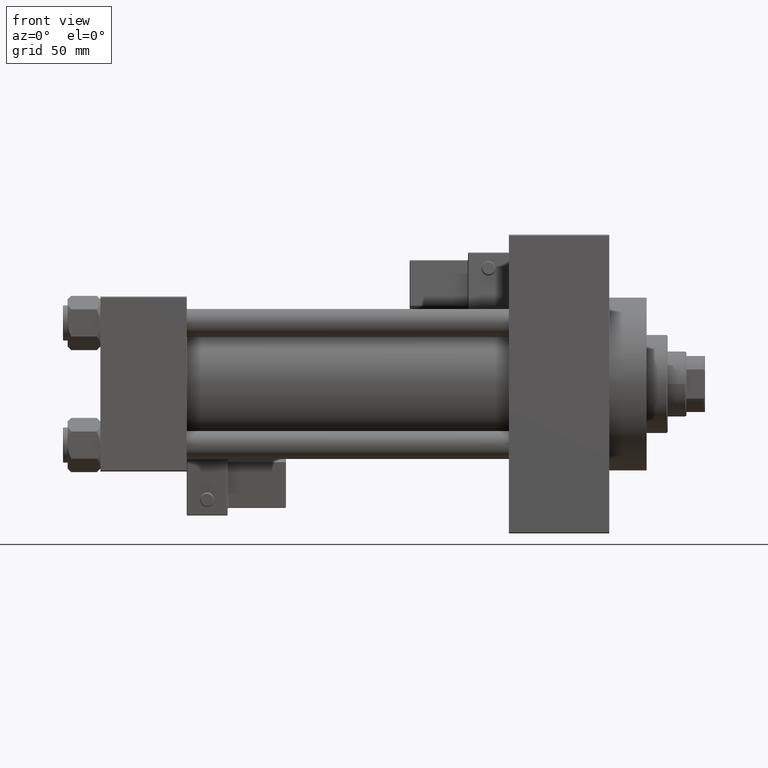
[diagram: clean part render]
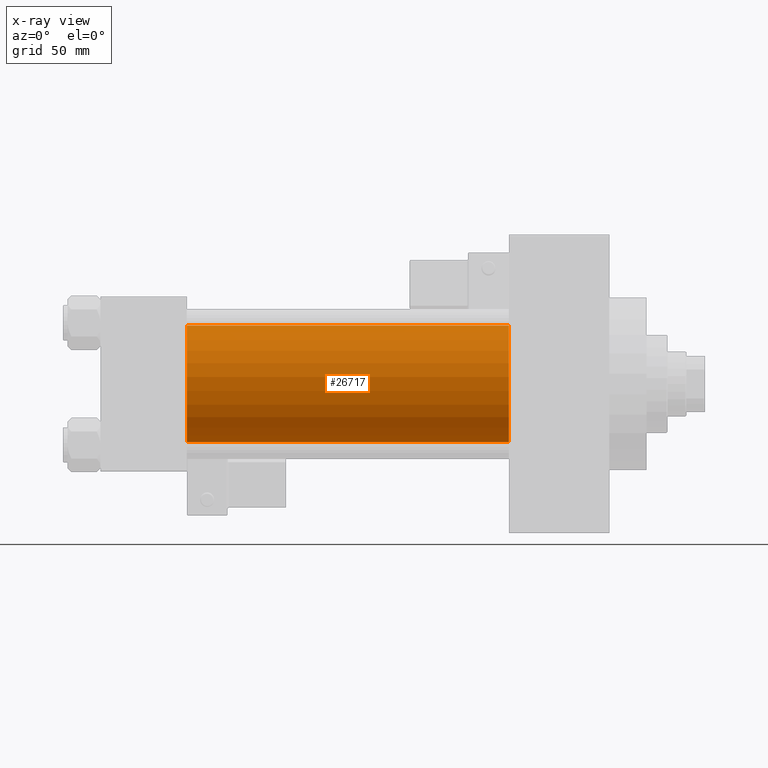
[diagram: x-ray — body ghosted, one internal face saturated and labeled with its STEP entity id]
A machine part, front view, then the same camera in x-ray: the body is ghosted and one INTERNAL B-rep face — a face not visible from any outside direction — is saturated and labeled: STEP entity #26717.
In plain terms, the highlighted cylindrical surface (partial cylindrical patch) has radius 25 mm, axis along (-1, -0, -0).
Its self-contained STEP definition (entity closure, byte-faithful):
#1724 = DIRECTION ( 'NONE',  ( 0.000000000000000000, 0.000000000000000000, -1.000000000000000000 ) ) ;
#5190 = EDGE_CURVE ( 'NONE', #12393, #48206, #26837, .T. ) ;
#5609 = ORIENTED_EDGE ( 'NONE', *, *, #5190, .F. ) ;
#5840 = DIRECTION ( 'NONE',  ( 1.000000000000000000, 0.000000000000000000, 0.000000000000000000 ) ) ;
#7569 = DIRECTION ( 'NONE',  ( -1.000000000000000000, -0.000000000000000000, -0.000000000000000000 ) ) ;
#9737 = CARTESIAN_POINT ( 'NONE',  ( 37.00000000000000000, -2.602085213965210642E-15, 25.00000000000000000 ) ) ;
#10143 = AXIS2_PLACEMENT_3D ( 'NONE', #10459, #40947, #1724 ) ;
#10459 = CARTESIAN_POINT ( 'NONE',  ( 175.0000000000000284, -2.602085213965210642E-15, 0.000000000000000000 ) ) ;
#12393 = VERTEX_POINT ( 'NONE', #28611 ) ;
#13316 = CIRCLE ( 'NONE', #10143, 25.00000000000000000 ) ;
#17231 = ORIENTED_EDGE ( 'NONE', *, *, #46264, .T. ) ;
#19589 = VERTEX_POINT ( 'NONE', #24267 ) ;
#20333 = DIRECTION ( 'NONE',  ( -1.000000000000000000, -0.000000000000000000, -0.000000000000000000 ) ) ;
#23365 = EDGE_CURVE ( 'NONE', #19589, #46128, #33511, .T. ) ;
#24267 = CARTESIAN_POINT ( 'NONE',  ( 175.0000000000000284, 4.595317839031724996E-16, -25.00000000000000000 ) ) ;
#25319 = FACE_OUTER_BOUND ( 'NONE', #44546, .T. ) ;
#26276 = CARTESIAN_POINT ( 'NONE',  ( 37.00000000000000000, 4.595317839031724996E-16, -25.00000000000000000 ) ) ;
#26717 = ADVANCED_FACE ( 'NONE', ( #25319 ), #28096, .F. ) ;
#26837 = LINE ( 'NONE', #41568, #34090 ) ;
#28096 = CYLINDRICAL_SURFACE ( 'NONE', #34690, 25.00000000000000000 ) ;
#28434 = CIRCLE ( 'NONE', #47548, 25.00000000000000000 ) ;
#28611 = CARTESIAN_POINT ( 'NONE',  ( 175.0000000000000284, -2.602085213965210642E-15, 25.00000000000000000 ) ) ;
#28689 = ORIENTED_EDGE ( 'NONE', *, *, #44686, .F. ) ;
#28854 = DIRECTION ( 'NONE',  ( 0.000000000000000000, 0.000000000000000000, -1.000000000000000000 ) ) ;
#33511 = LINE ( 'NONE', #45483, #37752 ) ;
#34090 = VECTOR ( 'NONE', #7569, 1000.000000000000000 ) ;
#34690 = AXIS2_PLACEMENT_3D ( 'NONE', #40562, #20333, #35589 ) ;
#35589 = DIRECTION ( 'NONE',  ( 0.000000000000000000, 0.000000000000000000, 1.000000000000000000 ) ) ;
#37752 = VECTOR ( 'NONE', #48736, 1000.000000000000000 ) ;
#40562 = CARTESIAN_POINT ( 'NONE',  ( 175.0000000000000284, -2.602085213965210642E-15, 0.000000000000000000 ) ) ;
#40947 = DIRECTION ( 'NONE',  ( 1.000000000000000000, 0.000000000000000000, 0.000000000000000000 ) ) ;
#41459 = ORIENTED_EDGE ( 'NONE', *, *, #23365, .T. ) ;
#41568 = CARTESIAN_POINT ( 'NONE',  ( 175.0000000000000284, -2.602085213965210642E-15, 25.00000000000000000 ) ) ;
#44546 = EDGE_LOOP ( 'NONE', ( #17231, #41459, #28689, #5609 ) ) ;
#44686 = EDGE_CURVE ( 'NONE', #48206, #46128, #28434, .T. ) ;
#45483 = CARTESIAN_POINT ( 'NONE',  ( 175.0000000000000284, 4.595317839031724996E-16, -25.00000000000000000 ) ) ;
#46128 = VERTEX_POINT ( 'NONE', #26276 ) ;
#46264 = EDGE_CURVE ( 'NONE', #12393, #19589, #13316, .T. ) ;
#47548 = AXIS2_PLACEMENT_3D ( 'NONE', #47821, #5840, #28854 ) ;
#47821 = CARTESIAN_POINT ( 'NONE',  ( 37.00000000000000000, -2.602085213965210642E-15, 0.000000000000000000 ) ) ;
#48206 = VERTEX_POINT ( 'NONE', #9737 ) ;
#48736 = DIRECTION ( 'NONE',  ( -1.000000000000000000, -0.000000000000000000, -0.000000000000000000 ) ) ;